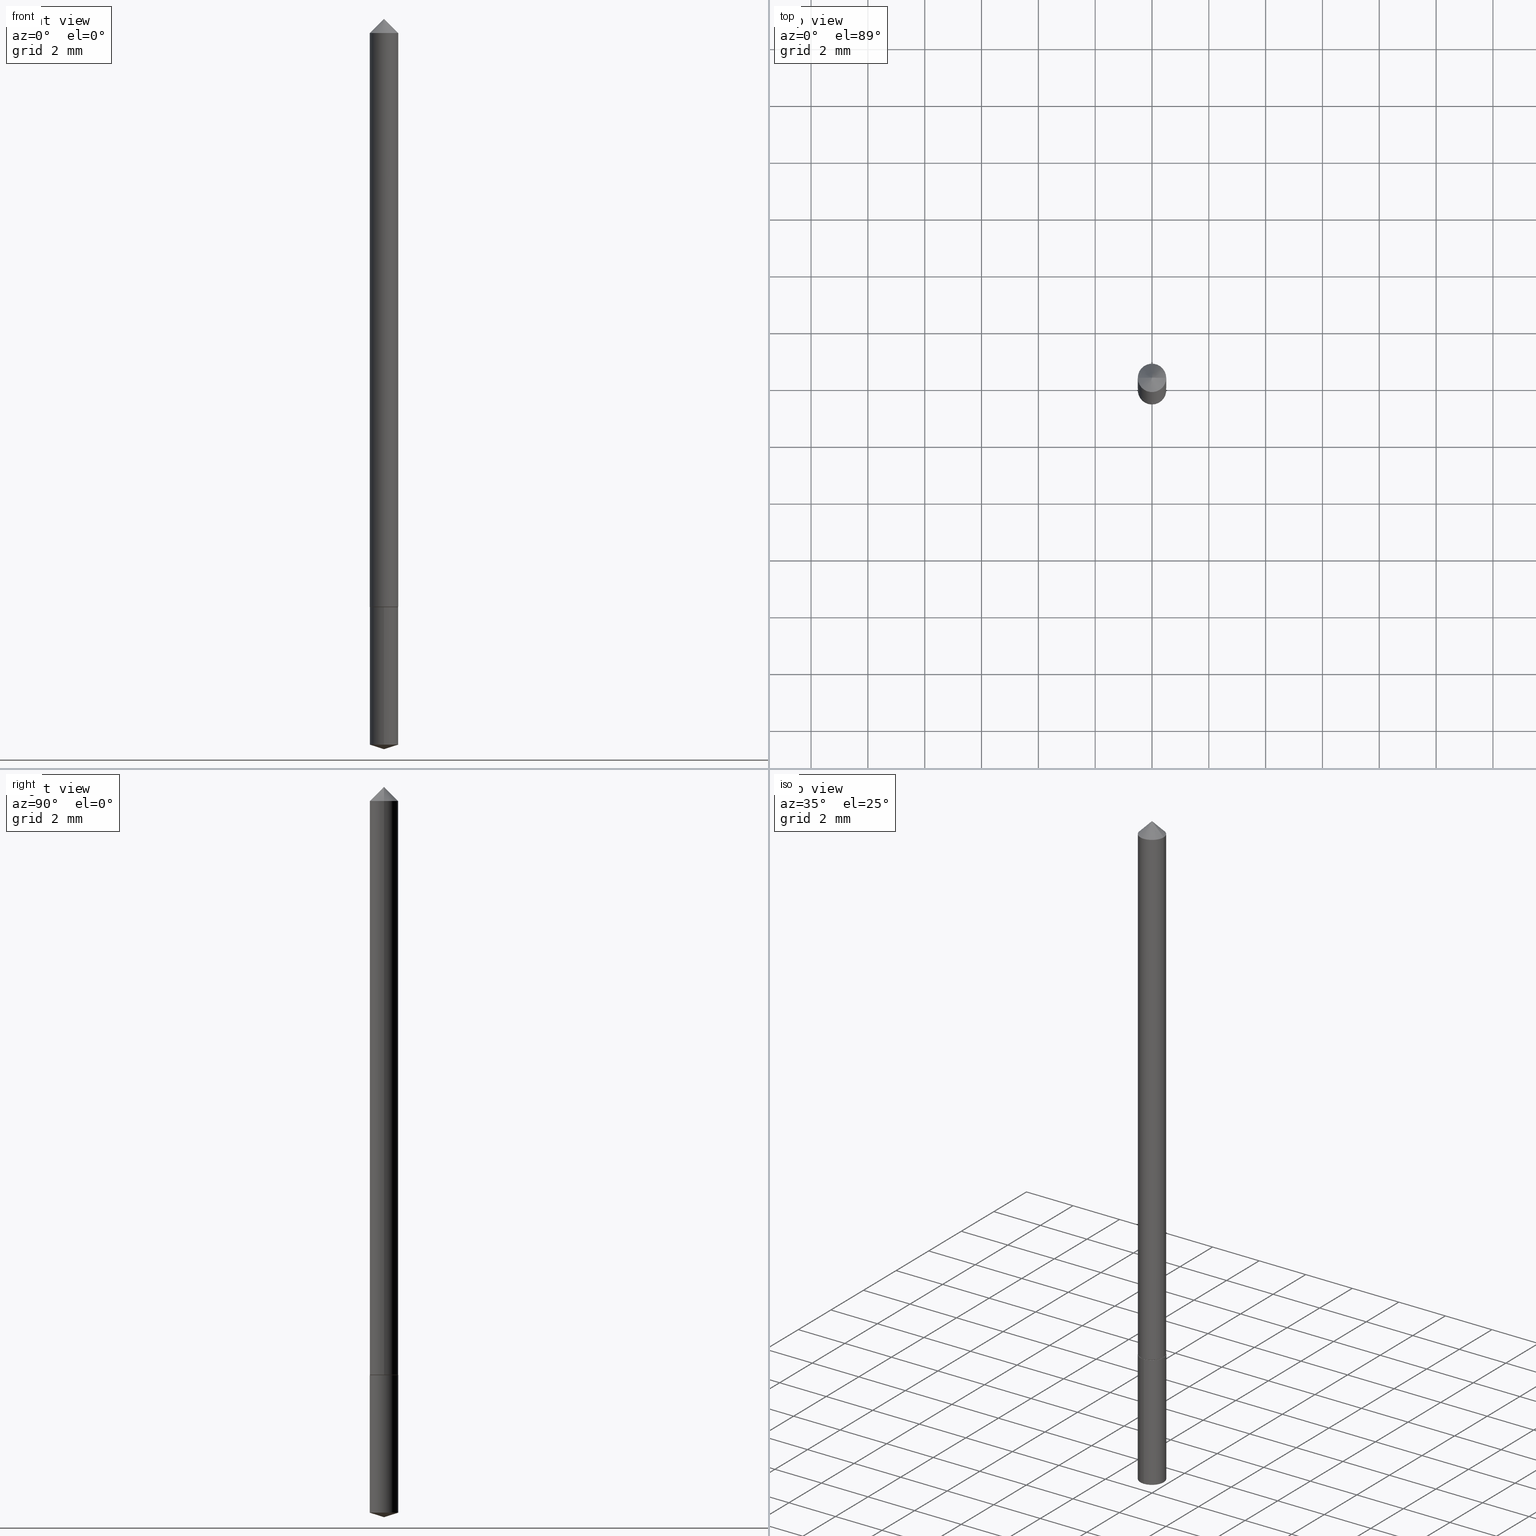
[diagram: canonical four-view strip — front | top / right | iso, engineering-drawing reading convention]
A machine part, canonical four-view strip (front | top / right | iso — engineering-drawing reading convention). The complete STEP part file that produces these views, byte-faithful:
ISO-10303-21;
HEADER;
FILE_DESCRIPTION (( 'STEP AP203' ),
    '1' );
FILE_NAME ('62021.STEP',
    '2024-04-23T04:48:46',
    ( '' ),
    ( '' ),
    'SwSTEP 2.0',
    'SolidWorks 2023',
    '' );
FILE_SCHEMA (( 'CONFIG_CONTROL_DESIGN' ));
ENDSEC;

DATA;
#1 = LINE ( 'NONE', #243, #228 ) ;
#2 = APPROVAL_ROLE ( '' ) ;
#3 = AXIS2_PLACEMENT_3D ( 'NONE', #248, #19, #328 ) ;
#4 = PLANE ( 'NONE',  #312 ) ;
#5 = DIMENSIONAL_EXPONENTS ( 1.000000000000000000, 0.000000000000000000, 0.000000000000000000, 0.000000000000000000, 0.000000000000000000, 0.000000000000000000, 0.000000000000000000 ) ;
#6 = ADVANCED_FACE ( 'NONE', ( #113 ), #149, .T. ) ;
#7 = DIRECTION ( 'NONE',  ( 0.7071067811865452413, -7.319954787623248157E-15, -0.7071067811865497932 ) ) ;
#8 = LOCAL_TIME ( 0, 48, 46.00000000000000000, #271 ) ;
#9 = COORDINATED_UNIVERSAL_TIME_OFFSET ( 5, 0, .BEHIND. ) ;
#10 = UNCERTAINTY_MEASURE_WITH_UNIT (LENGTH_MEASURE( 1.000000000000000082E-05 ), #325, 'distance_accuracy_value', 'NONE');
#11 = CARTESIAN_POINT ( 'NONE',  ( 0.000000000000000000, 0.000000000000000000, 0.000000000000000000 ) ) ;
#12 = EDGE_CURVE ( 'NONE', #157, #306, #1, .T. ) ;
#13 = DIRECTION ( 'NONE',  ( -6.982962677686265133E-15, -1.000000000000000000, 6.933624349401683764E-15 ) ) ;
#14 = PERSON_AND_ORGANIZATION ( #120, #258 ) ;
#15 = FACE_OUTER_BOUND ( 'NONE', #260, .T. ) ;
#16 = CLOSED_SHELL ( 'NONE', ( #190, #320, #355, #278, #225, #288, #127 ) ) ;
#17 = CC_DESIGN_APPROVAL ( #269, ( #178 ) ) ;
#18 = PERSON_AND_ORGANIZATION_ROLE ( 'design_supplier' ) ;
#19 = DIRECTION ( 'NONE',  ( -2.445468806185136597E-29, 3.491481338843145583E-15, 1.000000000000000000 ) ) ;
#20 = EDGE_CURVE ( 'NONE', #58, #223, #203, .T. ) ;
#21 = PERSON_AND_ORGANIZATION_ROLE ( 'classification_officer' ) ;
#22 = CARTESIAN_POINT ( 'NONE',  ( -0.01970000000000000223, -1.357082992117728466E-15, -0.03125000000000020123 ) ) ;
#23 = DATE_TIME_ROLE ( 'classification_date' ) ;
#24 = CARTESIAN_POINT ( 'NONE',  ( -0.01920000000000009893, -2.747683338515461892E-15, -0.8268000000000000904 ) ) ;
#25 = AXIS2_PLACEMENT_3D ( 'NONE', #162, #163, #75 ) ;
#26 = ORIENTED_EDGE ( 'NONE', *, *, #118, .F. ) ;
#27 = EDGE_CURVE ( 'NONE', #82, #58, #317, .T. ) ;
#28 = DIRECTION ( 'NONE',  ( -2.445468806185136597E-29, 3.491481338843145583E-15, 1.000000000000000000 ) ) ;
#29 = ORIENTED_EDGE ( 'NONE', *, *, #27, .T. ) ;
#30 = CC_DESIGN_DATE_AND_TIME_ASSIGNMENT ( #164, #23, ( #92 ) ) ;
#31 = VERTEX_POINT ( 'NONE', #117 ) ;
#32 = PRODUCT_DEFINITION_SHAPE ( 'NONE', 'NONE',  #361 ) ;
#33 = ORIENTED_EDGE ( 'NONE', *, *, #324, .F. ) ;
#34 = ORIENTED_EDGE ( 'NONE', *, *, #72, .T. ) ;
#35 = CARTESIAN_POINT ( 'NONE',  ( 2.503300626183294180E-29, -3.573714059019172459E-15, -1.023600000000000065 ) ) ;
#36 = CC_DESIGN_PERSON_AND_ORGANIZATION_ASSIGNMENT ( #294, #40, ( #139 ) ) ;
#37 = DIRECTION ( 'NONE',  ( 6.982962677686265922E-15, 1.000000000000000000, -3.491745210939450966E-15 ) ) ;
#38 = DIRECTION ( 'NONE',  ( 0.7071067811865232589, -2.468850131082003836E-15, 0.7071067811865715536 ) ) ;
#39 = DIRECTION ( 'NONE',  ( -6.659769872151631300E-15, -0.9537169507482265995, 0.3007057995042740073 ) ) ;
#40 = PERSON_AND_ORGANIZATION_ROLE ( 'design_owner' ) ;
#41 = APPROVAL_ROLE ( '' ) ;
#42 = AXIS2_PLACEMENT_3D ( 'NONE', #106, #48, #215 ) ;
#43 = ADVANCED_FACE ( 'NONE', ( #177 ), #257, .T. ) ;
#44 =( NAMED_UNIT ( * ) SI_UNIT ( $, .STERADIAN. ) SOLID_ANGLE_UNIT ( ) );
#45 = LINE ( 'NONE', #35, #160 ) ;
#46 = PLANE ( 'NONE',  #351 ) ;
#47 = AXIS2_PLACEMENT_3D ( 'NONE', #167, #280, #246 ) ;
#48 = DIRECTION ( 'NONE',  ( -2.445468806185136597E-29, 3.491481338843145583E-15, 1.000000000000000000 ) ) ;
#49 = CC_DESIGN_DATE_AND_TIME_ASSIGNMENT ( #121, #296, ( #361 ) ) ;
#50 = DIRECTION ( 'NONE',  ( -2.445468806185136597E-29, 3.491481338843145583E-15, 1.000000000000000000 ) ) ;
#51 = ORIENTED_EDGE ( 'NONE', *, *, #324, .T. ) ;
#52 = CYLINDRICAL_SURFACE ( 'NONE', #47, 0.01970000000000004733 ) ;
#53 = CONICAL_SURFACE ( 'NONE', #207, 0.01970000000000009938, 0.7853981633974141952 ) ;
#54 = EDGE_LOOP ( 'NONE', ( #171, #310, #111, #364 ) ) ;
#55 = VERTEX_POINT ( 'NONE', #350 ) ;
#56 = EDGE_CURVE ( 'NONE', #78, #82, #339, .T. ) ;
#57 = CIRCLE ( 'NONE', #101, 0.01969999999999999876 ) ;
#58 = VERTEX_POINT ( 'NONE', #236 ) ;
#59 = CONICAL_SURFACE ( 'NONE', #3, 0.01970000000000009938, 0.7853981633974141952 ) ;
#60 = APPROVAL_DATE_TIME ( #256, #201 ) ;
#61 = CARTESIAN_POINT ( 'NONE',  ( 2.021913608953870993E-29, -2.886756770955512686E-15, -0.8268000000000000904 ) ) ;
#62 = FACE_OUTER_BOUND ( 'NONE', #303, .T. ) ;
#63 = CARTESIAN_POINT ( 'NONE',  ( -9.376789948249931942E-28, 1.338963516667855731E-13, 38.34647874015747959 ) ) ;
#64 = APPROVAL_STATUS ( 'not_yet_approved' ) ;
#65 = VECTOR ( 'NONE', #266, 39.37007874015748143 ) ;
#66 = DIRECTION ( 'NONE',  ( -2.445468806185136597E-29, 3.491481338843145583E-15, 1.000000000000000000 ) ) ;
#67 = CALENDAR_DATE ( 2024, 23, 4 ) ;
#68 =( NAMED_UNIT ( * ) PLANE_ANGLE_UNIT ( ) SI_UNIT ( $, .RADIAN. ) );
#69 = DIRECTION ( 'NONE',  ( -2.445468806185136597E-29, 3.491481338843145583E-15, 1.000000000000000000 ) ) ;
#70 = CARTESIAN_POINT ( 'NONE',  ( 2.021913608953870993E-29, -2.886756770955512686E-15, -0.8268000000000000904 ) ) ;
#71 = PERSON_AND_ORGANIZATION ( #120, #258 ) ;
#72 = EDGE_CURVE ( 'NONE', #55, #31, #45, .T. ) ;
#73 = DIRECTION ( 'NONE',  ( -2.445284545285118466E-29, 3.491745210939450966E-15, 1.000000000000000000 ) ) ;
#74 = APPROVAL ( #268, 'UNSPECIFIED' ) ;
#75 = DIRECTION ( 'NONE',  ( 1.000000000000000000, -6.982962677686265922E-15, 0.000000000000000000 ) ) ;
#76 = CONICAL_SURFACE ( 'NONE', #285, 0.01970000000000000223, 0.7853981633974450594 ) ;
#77 = DIRECTION ( 'NONE',  ( -2.445284545285118466E-29, 3.491745210939450966E-15, 1.000000000000000000 ) ) ;
#78 = VERTEX_POINT ( 'NONE', #343 ) ;
#79 = CARTESIAN_POINT ( 'NONE',  ( 0.000000000000000000, 0.000000000000000000, 0.000000000000000000 ) ) ;
#80 = EDGE_CURVE ( 'NONE', #308, #78, #210, .T. ) ;
#81 = ORIENTED_EDGE ( 'NONE', *, *, #309, .F. ) ;
#82 = VERTEX_POINT ( 'NONE', #290 ) ;
#83 = ORIENTED_EDGE ( 'NONE', *, *, #154, .T. ) ;
#84 = EDGE_CURVE ( 'NONE', #306, #223, #183, .T. ) ;
#85 = EDGE_LOOP ( 'NONE', ( #311, #83, #335 ) ) ;
#86 = CARTESIAN_POINT ( 'NONE',  ( 0.01970000000000009938, -3.022575395036511186E-15, -0.8263000000000000345 ) ) ;
#87 = PERSON_AND_ORGANIZATION ( #120, #258 ) ;
#88 = CARTESIAN_POINT ( 'NONE',  ( 2.021913608953870993E-29, -2.886756770955512686E-15, -0.8268000000000000904 ) ) ;
#89 = DIRECTION ( 'NONE',  ( -2.445284545285118466E-29, 3.491745210939450966E-15, 1.000000000000000000 ) ) ;
#90 = DIRECTION ( 'NONE',  ( -2.445284545285118466E-29, 3.491745210939450966E-15, 1.000000000000000000 ) ) ;
#91 = AXIS2_PLACEMENT_3D ( 'NONE', #61, #145, #295 ) ;
#92 = SECURITY_CLASSIFICATION ( '', '', #128 ) ;
#93 = MECHANICAL_CONTEXT ( 'NONE', #217, 'mechanical' ) ;
#94 = LENGTH_MEASURE_WITH_UNIT ( LENGTH_MEASURE( 0.02539999999999999897 ), #321 );
#95 = CIRCLE ( 'NONE', #91, 0.01969999999999999876 ) ;
#96 = DIRECTION ( 'NONE',  ( -0.7071067811865452413, 2.468850131082233000E-15, -0.7071067811865497932 ) ) ;
#97 = DATE_AND_TIME ( #67, #8 ) ;
#98 = CARTESIAN_POINT ( 'NONE',  ( -1.375643647503991970E-16, -0.01970000000000288187, -0.8267999999999998684 ) ) ;
#99 = PRODUCT_RELATED_PRODUCT_CATEGORY ( 'detail', '', ( #139 ) ) ;
#100 = CARTESIAN_POINT ( 'NONE',  ( 2.487957000930802816E-29, -3.552243650657558209E-15, -1.017388613859084190 ) ) ;
#101 = AXIS2_PLACEMENT_3D ( 'NONE', #326, #90, #319 ) ;
#102 = CARTESIAN_POINT ( 'NONE',  ( 2.021913608953870993E-29, -2.886756770955512686E-15, -0.8268000000000000904 ) ) ;
#103 = AXIS2_PLACEMENT_3D ( 'NONE', #249, #222, #188 ) ;
#104 = MANIFOLD_SOLID_BREP ( 'Body-Move/Copy2[1]', #244 ) ;
#105 = MANIFOLD_SOLID_BREP ( 'Body-Move/Copy2[2]', #16 ) ;
#106 = CARTESIAN_POINT ( 'NONE',  ( 2.020690874550778472E-29, -2.885011030286090788E-15, -0.8263000000000000345 ) ) ;
#107 = EDGE_CURVE ( 'NONE', #143, #359, #95, .T. ) ;
#108 = ORIENTED_EDGE ( 'NONE', *, *, #123, .T. ) ;
#109 = ORIENTED_EDGE ( 'NONE', *, *, #342, .T. ) ;
#110 = APPROVAL_PERSON_ORGANIZATION ( #250, #201, #2 ) ;
#111 = ORIENTED_EDGE ( 'NONE', *, *, #309, .T. ) ;
#112 = EDGE_LOOP ( 'NONE', ( #283, #109, #142, #33 ) ) ;
#113 = FACE_OUTER_BOUND ( 'NONE', #166, .T. ) ;
#114 = DIRECTION ( 'NONE',  ( 2.445468806185136597E-29, -3.491481338843145583E-15, -1.000000000000000000 ) ) ;
#115 = APPROVAL_PERSON_ORGANIZATION ( #150, #74, #41 ) ;
#116 = DIRECTION ( 'NONE',  ( 6.776566513254256560E-15, 0.9537169507482287090, 0.3007057995042674015 ) ) ;
#117 = CARTESIAN_POINT ( 'NONE',  ( 1.399769189447645276E-16, 0.01969999999999644258, -1.017388613859084412 ) ) ;
#118 = EDGE_CURVE ( 'NONE', #157, #223, #237, .T. ) ;
#119 = CIRCLE ( 'NONE', #25, 0.01920000000000009893 ) ;
#120 = PERSON ( 'UNSPECIFIED', 'UNSPECIFIED', 'UNSPECIFIED', ('UNSPECIFIED'), ('UNSPECIFIED'), ('UNSPECIFIED') ) ;
#121 = DATE_AND_TIME ( #200, #323 ) ;
#122 = DIRECTION ( 'NONE',  ( -2.445468806185136597E-29, 3.491481338843145583E-15, 1.000000000000000000 ) ) ;
#123 = EDGE_CURVE ( 'NONE', #308, #58, #261, .T. ) ;
#124 = DIRECTION ( 'NONE',  ( 0.000000000000000000, 0.000000000000000000, 1.000000000000000000 ) ) ;
#125 = AXIS2_PLACEMENT_3D ( 'NONE', #11, #124, #347 ) ;
#126 = LINE ( 'NONE', #193, #245 ) ;
#127 = ADVANCED_FACE ( 'NONE', ( #62 ), #76, .T. ) ;
#128 = SECURITY_CLASSIFICATION_LEVEL ( 'unclassified' ) ;
#129 = DIRECTION ( 'NONE',  ( -2.445284545285118466E-29, 3.491745210939450966E-15, 1.000000000000000000 ) ) ;
#130 = DIRECTION ( 'NONE',  ( -6.982962677686265133E-15, -1.000000000000000000, 6.933624349401683764E-15 ) ) ;
#131 = EDGE_CURVE ( 'NONE', #31, #281, #57, .T. ) ;
#132 = CARTESIAN_POINT ( 'NONE',  ( 2.021913608953870993E-29, -2.886756770955512686E-15, -0.8268000000000000904 ) ) ;
#133 = AXIS2_PLACEMENT_3D ( 'NONE', #63, #252, #329 ) ;
#134 = ORIENTED_EDGE ( 'NONE', *, *, #12, .T. ) ;
#135 = FACE_OUTER_BOUND ( 'NONE', #227, .T. ) ;
#136 = ORIENTED_EDGE ( 'NONE', *, *, #80, .F. ) ;
#137 = ADVANCED_FACE ( 'NONE', ( #270 ), #4, .F. ) ;
#138 = ORIENTED_EDGE ( 'NONE', *, *, #12, .F. ) ;
#139 = PRODUCT ( '62021', '62021', '', ( #93 ) ) ;
#140 = VECTOR ( 'NONE', #344, 39.37007874015748854 ) ;
#141 = CC_DESIGN_APPROVAL ( #201, ( #92 ) ) ;
#142 = ORIENTED_EDGE ( 'NONE', *, *, #233, .F. ) ;
#143 = VERTEX_POINT ( 'NONE', #147 ) ;
#144 = COORDINATED_UNIVERSAL_TIME_OFFSET ( 5, 0, .BEHIND. ) ;
#145 = DIRECTION ( 'NONE',  ( -2.445284545285118466E-29, 3.491745210939450966E-15, 1.000000000000000000 ) ) ;
#146 = AXIS2_PLACEMENT_3D ( 'NONE', #272, #66, #202 ) ;
#147 = CARTESIAN_POINT ( 'NONE',  ( 1.399769189447645769E-16, 0.01969999999999711218, -0.8268000000000002014 ) ) ;
#148 = AXIS2_PLACEMENT_3D ( 'NONE', #224, #28, #356 ) ;
#149 = CYLINDRICAL_SURFACE ( 'NONE', #292, 0.01969999999999999876 ) ;
#150 = PERSON_AND_ORGANIZATION ( #120, #258 ) ;
#151 = VECTOR ( 'NONE', #39, 39.37007874015748854 ) ;
#152 = VECTOR ( 'NONE', #348, 39.37007874015748143 ) ;
#153 = DIRECTION ( 'NONE',  ( 1.000000000000000000, -6.982962677686268288E-15, 0.000000000000000000 ) ) ;
#154 = EDGE_CURVE ( 'NONE', #55, #281, #291, .T. ) ;
#155 = CARTESIAN_POINT ( 'NONE',  ( 2.824516471143851437E-31, -4.032660946363858749E-17, -0.01155000000000007410 ) ) ;
#156 = PERSON_AND_ORGANIZATION_ROLE ( 'creator' ) ;
#157 = VERTEX_POINT ( 'NONE', #155 ) ;
#158 = DESIGN_CONTEXT ( 'detailed design', #231, 'design' ) ;
#159 = APPROVAL_STATUS ( 'not_yet_approved' ) ;
#160 = VECTOR ( 'NONE', #116, 39.37007874015748143 ) ;
#161 = CC_DESIGN_SECURITY_CLASSIFICATION ( #92, ( #178 ) ) ;
#162 = CARTESIAN_POINT ( 'NONE',  ( 2.021913608953870993E-29, -2.886756770955512686E-15, -0.8268000000000000904 ) ) ;
#163 = DIRECTION ( 'NONE',  ( -2.445468806185136597E-29, 3.491481338843145583E-15, 1.000000000000000000 ) ) ;
#164 = DATE_AND_TIME ( #304, #229 ) ;
#165 = DIRECTION ( 'NONE',  ( 1.000000000000000000, -6.982962677686266711E-15, 4.876176775795936353E-29 ) ) ;
#166 = EDGE_LOOP ( 'NONE', ( #226, #253, #51, #196 ) ) ;
#167 = CARTESIAN_POINT ( 'NONE',  ( 0.000000000000000000, 0.000000000000000000, 0.000000000000000000 ) ) ;
#168 = EDGE_LOOP ( 'NONE', ( #362, #34, #230 ) ) ;
#169 = EDGE_LOOP ( 'NONE', ( #26, #134, #337 ) ) ;
#170 = CC_DESIGN_PERSON_AND_ORGANIZATION_ASSIGNMENT ( #71, #18, ( #178 ) ) ;
#171 = ORIENTED_EDGE ( 'NONE', *, *, #20, .F. ) ;
#172 = VECTOR ( 'NONE', #38, 39.37007874015748854 ) ;
#173 = ORIENTED_EDGE ( 'NONE', *, *, #247, .T. ) ;
#174 = CARTESIAN_POINT ( 'NONE',  ( -0.01970000000000004733, 1.399769189447400729E-16, -9.690302127802188776E-31 ) ) ;
#175 = ADVANCED_FACE ( 'NONE', ( #265 ), #293, .T. ) ;
#176 = CARTESIAN_POINT ( 'NONE',  ( 2.021913608953870993E-29, -2.886756770955512686E-15, -0.8268000000000000904 ) ) ;
#177 = FACE_OUTER_BOUND ( 'NONE', #168, .T. ) ;
#178 = PRODUCT_DEFINITION_FORMATION_WITH_SPECIFIED_SOURCE ( 'ANY', '', #139, .NOT_KNOWN. ) ;
#179 = EDGE_CURVE ( 'NONE', #281, #31, #221, .T. ) ;
#180 = DIRECTION ( 'NONE',  ( 2.445284545285117906E-29, -3.491745210939450966E-15, -1.000000000000000000 ) ) ;
#181 = APPROVAL_DATE_TIME ( #97, #269 ) ;
#182 = APPLICATION_PROTOCOL_DEFINITION ( 'international standard', 'config_control_design', 1994, #231 ) ;
#183 = CIRCLE ( 'NONE', #220, 0.01970000000000000223 ) ;
#184 = CIRCLE ( 'NONE', #313, 0.01969999999999999876 ) ;
#185 = LINE ( 'NONE', #349, #279 ) ;
#186 = CARTESIAN_POINT ( 'NONE',  ( -0.01970000000000000223, 2.845557291157046503E-17, -0.03125000000000020123 ) ) ;
#187 = CARTESIAN_POINT ( 'NONE',  ( -1.375643647503991970E-16, -0.01970000000000288187, -0.8267999999999998684 ) ) ;
#188 = DIRECTION ( 'NONE',  ( -1.000000000000000000, 6.982962677686267499E-15, 0.000000000000000000 ) ) ;
#189 = DIRECTION ( 'NONE',  ( 1.000000000000000000, -6.982962677686265922E-15, 4.876176775795935793E-29 ) ) ;
#190 = ADVANCED_FACE ( 'NONE', ( #331 ), #307, .T. ) ;
#191 = FACE_OUTER_BOUND ( 'NONE', #54, .T. ) ;
#192 = ORIENTED_EDGE ( 'NONE', *, *, #204, .F. ) ;
#193 = CARTESIAN_POINT ( 'NONE',  ( 0.01970000000000004733, -1.375643647504197814E-16, 9.606068248318017740E-31 ) ) ;
#194 = ORIENTED_EDGE ( 'NONE', *, *, #80, .T. ) ;
#195 = EDGE_CURVE ( 'NONE', #78, #308, #119, .T. ) ;
#196 = ORIENTED_EDGE ( 'NONE', *, *, #107, .F. ) ;
#197 = ORIENTED_EDGE ( 'NONE', *, *, #27, .F. ) ;
#198 = ORIENTED_EDGE ( 'NONE', *, *, #118, .T. ) ;
#199 = DIRECTION ( 'NONE',  ( 1.000000000000000000, -6.982962677686265922E-15, 0.000000000000000000 ) ) ;
#200 = CALENDAR_DATE ( 2024, 23, 4 ) ;
#201 = APPROVAL ( #64, 'UNSPECIFIED' ) ;
#202 = DIRECTION ( 'NONE',  ( 1.000000000000000000, -6.982962677686268288E-15, 0.000000000000000000 ) ) ;
#203 = LINE ( 'NONE', #174, #65 ) ;
#204 = EDGE_CURVE ( 'NONE', #58, #82, #264, .T. ) ;
#205 = AXIS2_PLACEMENT_3D ( 'NONE', #206, #234, #287 ) ;
#206 = CARTESIAN_POINT ( 'NONE',  ( -9.376789948249931942E-28, 1.338963516667855731E-13, 38.34647874015747959 ) ) ;
#207 = AXIS2_PLACEMENT_3D ( 'NONE', #241, #69, #153 ) ;
#208 = DIRECTION ( 'NONE',  ( -2.445284545285118466E-29, 3.491745210939450966E-15, 1.000000000000000000 ) ) ;
#209 = CALENDAR_DATE ( 2024, 23, 4 ) ;
#210 = CIRCLE ( 'NONE', #263, 0.01920000000000009893 ) ;
#211 = AXIS2_PLACEMENT_3D ( 'NONE', #79, #50, #165 ) ;
#212 = CARTESIAN_POINT ( 'NONE',  ( 7.642090019328601786E-31, -1.091087918388490144E-16, -0.03125000000000020123 ) ) ;
#213 = CC_DESIGN_PERSON_AND_ORGANIZATION_ASSIGNMENT ( #216, #21, ( #92 ) ) ;
#214 = APPROVAL_DATE_TIME ( #273, #74 ) ;
#215 = DIRECTION ( 'NONE',  ( 1.000000000000000000, -6.982962677686268288E-15, 0.000000000000000000 ) ) ;
#216 = PERSON_AND_ORGANIZATION ( #120, #258 ) ;
#217 = APPLICATION_CONTEXT ( 'configuration controlled 3d designs of mechanical parts and assemblies' ) ;
#218 = CARTESIAN_POINT ( 'NONE',  ( 2.021913608953870993E-29, -2.886756770955512686E-15, -0.8268000000000000904 ) ) ;
#219 = ADVANCED_BREP_SHAPE_REPRESENTATION ( '62021', ( #104, #105, #125 ), #357 ) ;
#220 = AXIS2_PLACEMENT_3D ( 'NONE', #238, #315, #314 ) ;
#221 = CIRCLE ( 'NONE', #340, 0.01969999999999999876 ) ;
#222 = DIRECTION ( 'NONE',  ( 2.445468806185136597E-29, -3.491481338843145583E-15, -1.000000000000000000 ) ) ;
#223 = VERTEX_POINT ( 'NONE', #22 ) ;
#224 = CARTESIAN_POINT ( 'NONE',  ( 7.642090019328601786E-31, -1.091087918388490144E-16, -0.03125000000000020123 ) ) ;
#225 = ADVANCED_FACE ( 'NONE', ( #274 ), #59, .T. ) ;
#226 = ORIENTED_EDGE ( 'NONE', *, *, #342, .F. ) ;
#227 = EDGE_LOOP ( 'NONE', ( #29, #254, #232, #81 ) ) ;
#228 = VECTOR ( 'NONE', #7, 39.37007874015748143 ) ;
#229 = LOCAL_TIME ( 0, 48, 46.00000000000000000, #354 ) ;
#230 = ORIENTED_EDGE ( 'NONE', *, *, #179, .F. ) ;
#231 = APPLICATION_CONTEXT ( 'configuration controlled 3d designs of mechanical parts and assemblies' ) ;
#232 = ORIENTED_EDGE ( 'NONE', *, *, #84, .F. ) ;
#233 = EDGE_CURVE ( 'NONE', #359, #143, #184, .T. ) ;
#234 = DIRECTION ( 'NONE',  ( -2.445284545285118466E-29, 3.491745210939450966E-15, 1.000000000000000000 ) ) ;
#235 = CIRCLE ( 'NONE', #148, 0.01970000000000000223 ) ;
#236 = CARTESIAN_POINT ( 'NONE',  ( -0.01970000000000009938, -2.745034111341350691E-15, -0.8263000000000000345 ) ) ;
#237 = LINE ( 'NONE', #186, #299 ) ;
#238 = CARTESIAN_POINT ( 'NONE',  ( 7.642090019328601786E-31, -1.091087918388490144E-16, -0.03125000000000020123 ) ) ;
#239 = CC_DESIGN_PERSON_AND_ORGANIZATION_ASSIGNMENT ( #14, #327, ( #178 ) ) ;
#240 = FACE_OUTER_BOUND ( 'NONE', #360, .T. ) ;
#241 = CARTESIAN_POINT ( 'NONE',  ( 2.020690874550778472E-29, -2.885011030286090788E-15, -0.8263000000000000345 ) ) ;
#242 = APPROVAL_ROLE ( '' ) ;
#243 = CARTESIAN_POINT ( 'NONE',  ( 0.01970000000000000223, -2.442606023949481714E-16, -0.03125000000000020123 ) ) ;
#244 = CLOSED_SHELL ( 'NONE', ( #262, #43, #175, #6, #137 ) ) ;
#245 = VECTOR ( 'NONE', #305, 39.37007874015748143 ) ;
#246 = DIRECTION ( 'NONE',  ( 1.000000000000000000, -6.982962677686266711E-15, 4.876176775795936353E-29 ) ) ;
#247 = EDGE_CURVE ( 'NONE', #223, #306, #235, .T. ) ;
#248 = CARTESIAN_POINT ( 'NONE',  ( 2.020690874550778472E-29, -2.885011030286090788E-15, -0.8263000000000000345 ) ) ;
#249 = CARTESIAN_POINT ( 'NONE',  ( 7.642090019328601786E-31, -1.091087918388490144E-16, -0.03125000000000020123 ) ) ;
#250 = PERSON_AND_ORGANIZATION ( #120, #258 ) ;
#251 = LOCAL_TIME ( 0, 48, 46.00000000000000000, #9 ) ;
#252 = DIRECTION ( 'NONE',  ( -2.445284545285118466E-29, 3.491745210939450966E-15, 1.000000000000000000 ) ) ;
#253 = ORIENTED_EDGE ( 'NONE', *, *, #131, .T. ) ;
#254 = ORIENTED_EDGE ( 'NONE', *, *, #20, .T. ) ;
#255 = EDGE_LOOP ( 'NONE', ( #282, #194, #334, #192 ) ) ;
#256 = DATE_AND_TIME ( #284, #318 ) ;
#257 = CONICAL_SURFACE ( 'NONE', #205, 124.8659371009149908, 1.265363707695891460 ) ;
#258 = ORGANIZATION ( 'UNSPECIFIED', 'UNSPECIFIED', '' ) ;
#259 = ORIENTED_EDGE ( 'NONE', *, *, #107, .T. ) ;
#260 = EDGE_LOOP ( 'NONE', ( #277, #136 ) ) ;
#261 = LINE ( 'NONE', #346, #140 ) ;
#262 = ADVANCED_FACE ( 'NONE', ( #353 ), #358, .T. ) ;
#263 = AXIS2_PLACEMENT_3D ( 'NONE', #88, #122, #199 ) ;
#264 = CIRCLE ( 'NONE', #42, 0.01970000000000009938 ) ;
#265 = FACE_OUTER_BOUND ( 'NONE', #85, .T. ) ;
#266 = DIRECTION ( 'NONE',  ( -2.445468806185136877E-29, 3.491481338843145188E-15, 1.000000000000000000 ) ) ;
#267 = APPLICATION_PROTOCOL_DEFINITION ( 'international standard', 'config_control_design', 1994, #217 ) ;
#268 = APPROVAL_STATUS ( 'not_yet_approved' ) ;
#269 = APPROVAL ( #159, 'UNSPECIFIED' ) ;
#270 = FACE_OUTER_BOUND ( 'NONE', #363, .T. ) ;
#271 = COORDINATED_UNIVERSAL_TIME_OFFSET ( 5, 0, .BEHIND. ) ;
#272 = CARTESIAN_POINT ( 'NONE',  ( 2.020690874550778472E-29, -2.885011030286090788E-15, -0.8263000000000000345 ) ) ;
#273 = DATE_AND_TIME ( #209, #251 ) ;
#274 = FACE_OUTER_BOUND ( 'NONE', #255, .T. ) ;
#275 = DIRECTION ( 'NONE',  ( -6.982962677686265133E-15, -1.000000000000000000, 6.933624349401683764E-15 ) ) ;
#276 = CARTESIAN_POINT ( 'NONE',  ( 0.01970000000000000223, -2.466731565892684629E-16, -0.03125000000000020123 ) ) ;
#277 = ORIENTED_EDGE ( 'NONE', *, *, #195, .F. ) ;
#278 = ADVANCED_FACE ( 'NONE', ( #15 ), #46, .F. ) ;
#279 = VECTOR ( 'NONE', #208, 39.37007874015748143 ) ;
#280 = DIRECTION ( 'NONE',  ( -2.445468806185136597E-29, 3.491481338843145583E-15, 1.000000000000000000 ) ) ;
#281 = VERTEX_POINT ( 'NONE', #301 ) ;
#282 = ORIENTED_EDGE ( 'NONE', *, *, #123, .F. ) ;
#283 = ORIENTED_EDGE ( 'NONE', *, *, #179, .T. ) ;
#284 = CALENDAR_DATE ( 2024, 23, 4 ) ;
#285 = AXIS2_PLACEMENT_3D ( 'NONE', #212, #114, #289 ) ;
#286 = ORIENTED_EDGE ( 'NONE', *, *, #233, .T. ) ;
#287 = DIRECTION ( 'NONE',  ( -6.982962677686265922E-15, -1.000000000000000000, 3.500519750498706404E-15 ) ) ;
#288 = ADVANCED_FACE ( 'NONE', ( #191 ), #302, .T. ) ;
#289 = DIRECTION ( 'NONE',  ( -1.000000000000000000, 6.982962677686267499E-15, 0.000000000000000000 ) ) ;
#290 = CARTESIAN_POINT ( 'NONE',  ( 0.01970000000000009938, -3.022575395036511186E-15, -0.8263000000000000345 ) ) ;
#291 = LINE ( 'NONE', #316, #151 ) ;
#292 = AXIS2_PLACEMENT_3D ( 'NONE', #176, #89, #13 ) ;
#293 = CONICAL_SURFACE ( 'NONE', #133, 124.8659371009149908, 1.265363707695891460 ) ;
#294 = PERSON_AND_ORGANIZATION ( #120, #258 ) ;
#295 = DIRECTION ( 'NONE',  ( -6.982962677686265133E-15, -1.000000000000000000, 6.933624349401683764E-15 ) ) ;
#296 = DATE_TIME_ROLE ( 'creation_date' ) ;
#297 = CC_DESIGN_PERSON_AND_ORGANIZATION_ASSIGNMENT ( #87, #156, ( #361 ) ) ;
#298 = DIRECTION ( 'NONE',  ( -6.982962677686265133E-15, -1.000000000000000000, 6.933624349401683764E-15 ) ) ;
#299 = VECTOR ( 'NONE', #96, 39.37007874015748143 ) ;
#300 = APPROVAL_PERSON_ORGANIZATION ( #322, #269, #242 ) ;
#301 = CARTESIAN_POINT ( 'NONE',  ( -1.375643647503945132E-16, -0.01970000000000354454, -1.017388613859084190 ) ) ;
#302 = CYLINDRICAL_SURFACE ( 'NONE', #211, 0.01970000000000004733 ) ;
#303 = EDGE_LOOP ( 'NONE', ( #138, #198, #173 ) ) ;
#304 = CALENDAR_DATE ( 2024, 23, 4 ) ;
#305 = DIRECTION ( 'NONE',  ( -2.445468806185136877E-29, 3.491481338843145188E-15, 1.000000000000000000 ) ) ;
#306 = VERTEX_POINT ( 'NONE', #276 ) ;
#307 = CONICAL_SURFACE ( 'NONE', #103, 0.01970000000000000223, 0.7853981633974450594 ) ;
#308 = VERTEX_POINT ( 'NONE', #24 ) ;
#309 = EDGE_CURVE ( 'NONE', #82, #306, #126, .T. ) ;
#310 = ORIENTED_EDGE ( 'NONE', *, *, #204, .T. ) ;
#311 = ORIENTED_EDGE ( 'NONE', *, *, #72, .F. ) ;
#312 = AXIS2_PLACEMENT_3D ( 'NONE', #70, #180, #37 ) ;
#313 = AXIS2_PLACEMENT_3D ( 'NONE', #132, #129, #298 ) ;
#314 = DIRECTION ( 'NONE',  ( 1.000000000000000000, -6.982962677686267499E-15, 0.000000000000000000 ) ) ;
#315 = DIRECTION ( 'NONE',  ( -2.445468806185136597E-29, 3.491481338843145583E-15, 1.000000000000000000 ) ) ;
#316 = CARTESIAN_POINT ( 'NONE',  ( 2.502993260553847563E-29, -3.574150397917622406E-15, -1.023600000000000065 ) ) ;
#317 = CIRCLE ( 'NONE', #146, 0.01970000000000009938 ) ;
#318 = LOCAL_TIME ( 0, 48, 46.00000000000000000, #144 ) ;
#319 = DIRECTION ( 'NONE',  ( -6.982962677686265133E-15, -1.000000000000000000, 6.933624349401683764E-15 ) ) ;
#320 = ADVANCED_FACE ( 'NONE', ( #135 ), #52, .T. ) ;
#321 =( LENGTH_UNIT ( ) NAMED_UNIT ( * ) SI_UNIT ( $, .METRE. ) );
#322 = PERSON_AND_ORGANIZATION ( #120, #258 ) ;
#323 = LOCAL_TIME ( 0, 48, 46.00000000000000000, #341 ) ;
#324 = EDGE_CURVE ( 'NONE', #281, #359, #352, .T. ) ;
#325 =( CONVERSION_BASED_UNIT ( 'INCH', #94 ) LENGTH_UNIT ( ) NAMED_UNIT ( #5 ) );
#326 = CARTESIAN_POINT ( 'NONE',  ( 2.487957000930802816E-29, -3.552243650657558209E-15, -1.017388613859084190 ) ) ;
#327 = PERSON_AND_ORGANIZATION_ROLE ( 'creator' ) ;
#328 = DIRECTION ( 'NONE',  ( 1.000000000000000000, -6.982962677686268288E-15, 0.000000000000000000 ) ) ;
#329 = DIRECTION ( 'NONE',  ( -6.982962677686265922E-15, -1.000000000000000000, 3.500519750498706404E-15 ) ) ;
#330 = AXIS2_PLACEMENT_3D ( 'NONE', #218, #77, #130 ) ;
#331 = FACE_OUTER_BOUND ( 'NONE', #169, .T. ) ;
#332 = ORIENTED_EDGE ( 'NONE', *, *, #195, .T. ) ;
#333 = DIRECTION ( 'NONE',  ( -2.438088387897960049E-29, 3.491481338843145188E-15, 1.000000000000000000 ) ) ;
#334 = ORIENTED_EDGE ( 'NONE', *, *, #56, .T. ) ;
#335 = ORIENTED_EDGE ( 'NONE', *, *, #131, .F. ) ;
#336 = CC_DESIGN_APPROVAL ( #74, ( #361 ) ) ;
#337 = ORIENTED_EDGE ( 'NONE', *, *, #84, .T. ) ;
#338 = ORIENTED_EDGE ( 'NONE', *, *, #56, .F. ) ;
#339 = LINE ( 'NONE', #86, #172 ) ;
#340 = AXIS2_PLACEMENT_3D ( 'NONE', #100, #73, #275 ) ;
#341 = COORDINATED_UNIVERSAL_TIME_OFFSET ( 5, 0, .BEHIND. ) ;
#342 = EDGE_CURVE ( 'NONE', #31, #143, #185, .T. ) ;
#343 = CARTESIAN_POINT ( 'NONE',  ( 0.01920000000000009893, -3.020829654367089682E-15, -0.8268000000000000904 ) ) ;
#344 = DIRECTION ( 'NONE',  ( -0.7071067811865232589, 7.493145998870265808E-15, 0.7071067811865715536 ) ) ;
#345 = SHAPE_DEFINITION_REPRESENTATION ( #32, #219 ) ;
#346 = CARTESIAN_POINT ( 'NONE',  ( -0.01970000000000009938, -2.745034111341350691E-15, -0.8263000000000000345 ) ) ;
#347 = DIRECTION ( 'NONE',  ( 1.000000000000000000, 0.000000000000000000, 0.000000000000000000 ) ) ;
#348 = DIRECTION ( 'NONE',  ( -2.445284545285118466E-29, 3.491745210939450966E-15, 1.000000000000000000 ) ) ;
#349 = CARTESIAN_POINT ( 'NONE',  ( 1.399769189447599177E-16, 0.01969999999999711218, -0.8268000000000002014 ) ) ;
#350 = CARTESIAN_POINT ( 'NONE',  ( 2.502993260553847563E-29, -3.574150397917622406E-15, -1.023600000000000065 ) ) ;
#351 = AXIS2_PLACEMENT_3D ( 'NONE', #102, #333, #189 ) ;
#352 = LINE ( 'NONE', #98, #152 ) ;
#353 = FACE_OUTER_BOUND ( 'NONE', #112, .T. ) ;
#354 = COORDINATED_UNIVERSAL_TIME_OFFSET ( 5, 0, .BEHIND. ) ;
#355 = ADVANCED_FACE ( 'NONE', ( #240 ), #53, .T. ) ;
#356 = DIRECTION ( 'NONE',  ( 1.000000000000000000, -6.982962677686267499E-15, 0.000000000000000000 ) ) ;
#357 =( GEOMETRIC_REPRESENTATION_CONTEXT ( 3 ) GLOBAL_UNCERTAINTY_ASSIGNED_CONTEXT ( ( #10 ) ) GLOBAL_UNIT_ASSIGNED_CONTEXT ( ( #325, #68, #44 ) ) REPRESENTATION_CONTEXT ( 'NONE', 'WORKASPACE' ) );
#358 = CYLINDRICAL_SURFACE ( 'NONE', #330, 0.01969999999999999876 ) ;
#359 = VERTEX_POINT ( 'NONE', #187 ) ;
#360 = EDGE_LOOP ( 'NONE', ( #332, #108, #197, #338 ) ) ;
#361 = PRODUCT_DEFINITION ( 'UNKNOWN', '', #178, #158 ) ;
#362 = ORIENTED_EDGE ( 'NONE', *, *, #154, .F. ) ;
#363 = EDGE_LOOP ( 'NONE', ( #286, #259 ) ) ;
#364 = ORIENTED_EDGE ( 'NONE', *, *, #247, .F. ) ;
ENDSEC;
END-ISO-10303-21;
